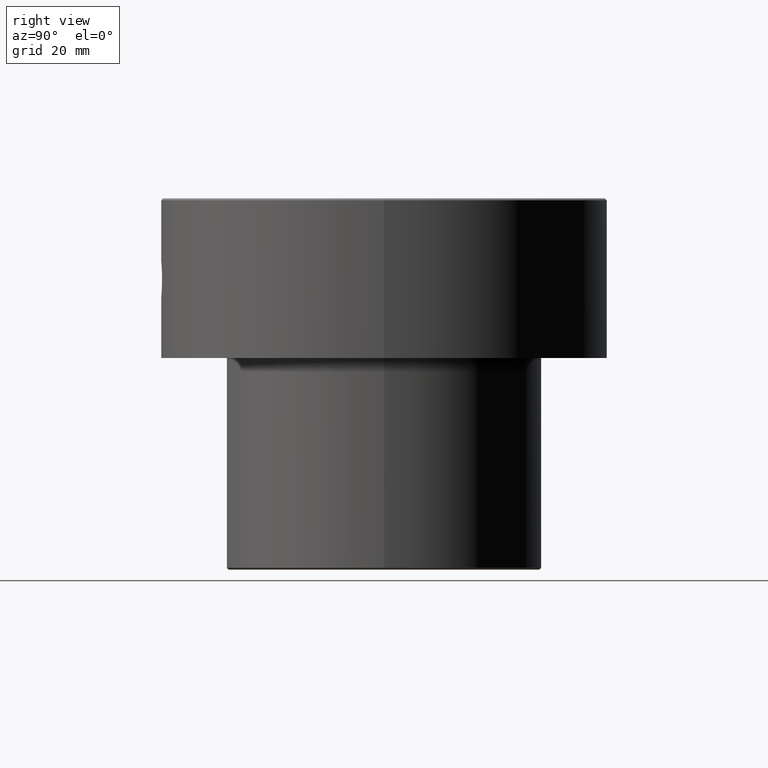
[diagram: clean part render]
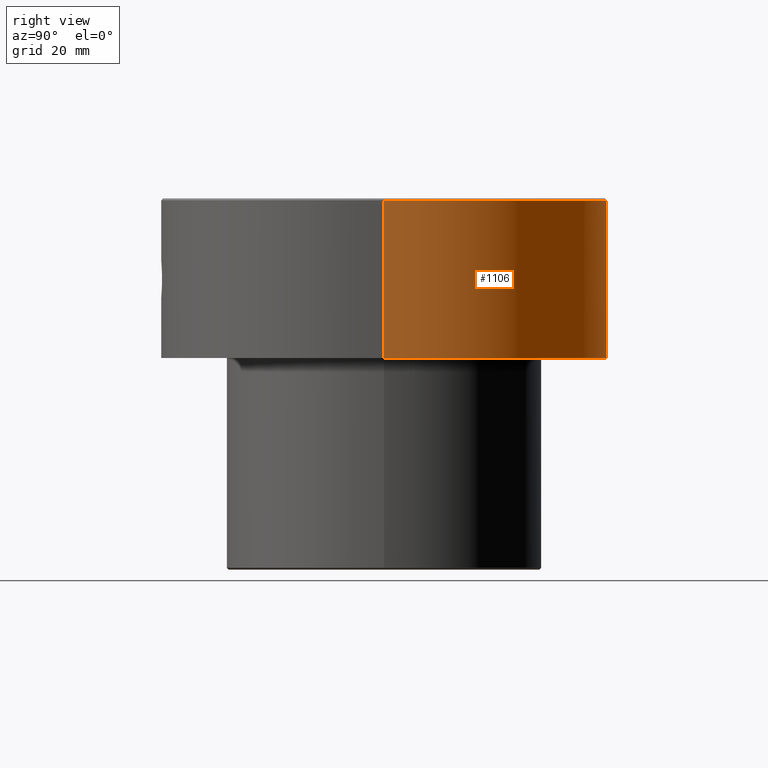
[diagram: same view with one face highlighted and labeled with its STEP entity id]
A machine part, right view. The second image highlights one B-rep face of the part: STEP entity #1106.
In plain terms, the highlighted cylindrical surface (partial cylindrical patch) has radius 60 mm, axis along (-0, -0, 1).
Its self-contained STEP definition (entity closure, byte-faithful):
#16 = CARTESIAN_POINT ( 'NONE',  ( 60.00000000000000000, 0.000000000000000000, -0.4999999999999796274 ) ) ;
#28 = LINE ( 'NONE', #1014, #422 ) ;
#34 = ORIENTED_EDGE ( 'NONE', *, *, #402, .T. ) ;
#51 = FACE_OUTER_BOUND ( 'NONE', #962, .T. ) ;
#55 = AXIS2_PLACEMENT_3D ( 'NONE', #103, #292, #789 ) ;
#103 = CARTESIAN_POINT ( 'NONE',  ( 0.000000000000000000, 0.000000000000000000, -0.4999999999999796274 ) ) ;
#130 = DIRECTION ( 'NONE',  ( 1.000000000000000000, 0.000000000000000000, 0.000000000000000000 ) ) ;
#145 = CARTESIAN_POINT ( 'NONE',  ( 0.000000000000000000, 0.000000000000000000, -43.00000000000000000 ) ) ;
#292 = DIRECTION ( 'NONE',  ( 0.000000000000000000, 0.000000000000000000, -1.000000000000000000 ) ) ;
#302 = DIRECTION ( 'NONE',  ( -0.000000000000000000, -0.000000000000000000, 1.000000000000000000 ) ) ;
#382 = AXIS2_PLACEMENT_3D ( 'NONE', #645, #875, #1158 ) ;
#402 = EDGE_CURVE ( 'NONE', #693, #967, #1244, .T. ) ;
#422 = VECTOR ( 'NONE', #302, 1000.000000000000000 ) ;
#477 = EDGE_CURVE ( 'NONE', #1111, #487, #698, .T. ) ;
#480 = AXIS2_PLACEMENT_3D ( 'NONE', #145, #841, #130 ) ;
#487 = VERTEX_POINT ( 'NONE', #637 ) ;
#498 = ORIENTED_EDGE ( 'NONE', *, *, #583, .T. ) ;
#525 = LINE ( 'NONE', #908, #1128 ) ;
#583 = EDGE_CURVE ( 'NONE', #487, #693, #28, .T. ) ;
#637 = CARTESIAN_POINT ( 'NONE',  ( -60.00000000000000000, 7.347880794884118356E-15, -43.00000000000000000 ) ) ;
#645 = CARTESIAN_POINT ( 'NONE',  ( 0.000000000000000000, 0.000000000000000000, 0.000000000000000000 ) ) ;
#667 = CARTESIAN_POINT ( 'NONE',  ( 60.00000000000000000, 0.000000000000000000, -43.00000000000000000 ) ) ;
#693 = VERTEX_POINT ( 'NONE', #1180 ) ;
#698 = CIRCLE ( 'NONE', #480, 60.00000000000000000 ) ;
#789 = DIRECTION ( 'NONE',  ( 1.000000000000000000, 0.000000000000000000, 0.000000000000000000 ) ) ;
#810 = DIRECTION ( 'NONE',  ( -0.000000000000000000, -0.000000000000000000, 1.000000000000000000 ) ) ;
#841 = DIRECTION ( 'NONE',  ( -0.000000000000000000, -0.000000000000000000, 1.000000000000000000 ) ) ;
#851 = CYLINDRICAL_SURFACE ( 'NONE', #382, 60.00000000000000000 ) ;
#875 = DIRECTION ( 'NONE',  ( -0.000000000000000000, -0.000000000000000000, 1.000000000000000000 ) ) ;
#908 = CARTESIAN_POINT ( 'NONE',  ( 60.00000000000000000, 0.000000000000000000, 0.000000000000000000 ) ) ;
#924 = ORIENTED_EDGE ( 'NONE', *, *, #959, .F. ) ;
#959 = EDGE_CURVE ( 'NONE', #1111, #967, #525, .T. ) ;
#962 = EDGE_LOOP ( 'NONE', ( #1090, #498, #34, #924 ) ) ;
#967 = VERTEX_POINT ( 'NONE', #16 ) ;
#1014 = CARTESIAN_POINT ( 'NONE',  ( -60.00000000000000000, 7.347880794884118356E-15, 0.000000000000000000 ) ) ;
#1090 = ORIENTED_EDGE ( 'NONE', *, *, #477, .T. ) ;
#1106 = ADVANCED_FACE ( 'NONE', ( #51 ), #851, .T. ) ;
#1111 = VERTEX_POINT ( 'NONE', #667 ) ;
#1128 = VECTOR ( 'NONE', #810, 1000.000000000000000 ) ;
#1158 = DIRECTION ( 'NONE',  ( 1.000000000000000000, 0.000000000000000000, 0.000000000000000000 ) ) ;
#1180 = CARTESIAN_POINT ( 'NONE',  ( -60.00000000000000000, 7.347880794884118356E-15, -0.4999999999999796274 ) ) ;
#1244 = CIRCLE ( 'NONE', #55, 60.00000000000000000 ) ;